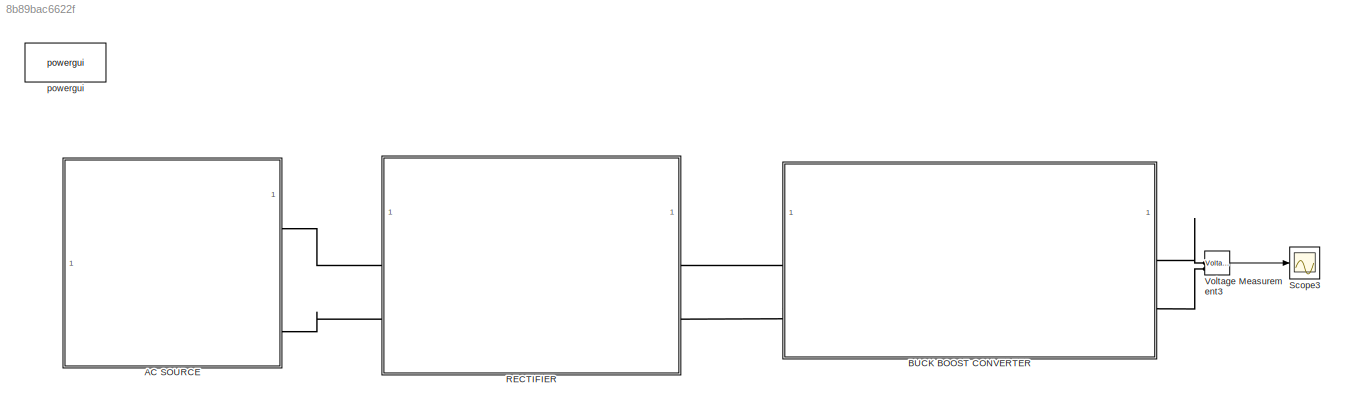
MODEL slx_8b89bac6622f
KIND model
CONFIG AbsTol = auto
CONFIG EnableMultiTasking = off
CONFIG FixedStep = auto
CONFIG MaxStep = auto
CONFIG MinStep = auto
CONFIG RelTol = 1e-3
CONFIG SampleTimeConstraint = Unconstrained
CONFIG SolverName = VariableStepAuto
CONFIG StartTime = 0.0
CONFIG StopTime = 0.02
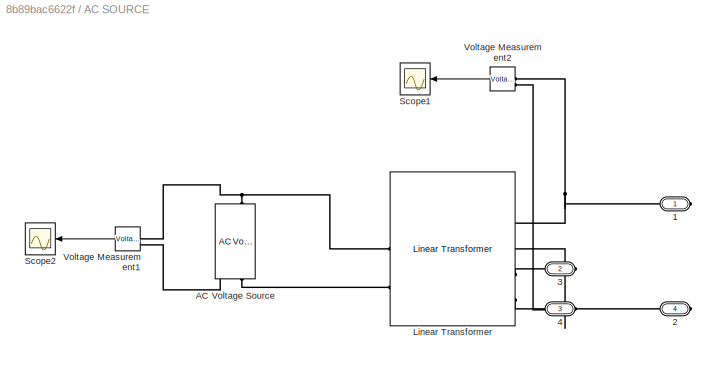
BLOCK [SubSystem] AC SOURCE
BLOCK [PMIOPort] AC SOURCE/1
  Side = Right
BLOCK [PMIOPort] AC SOURCE/2
  Port = 4
  Side = Right
BLOCK [PMIOPort] AC SOURCE/3
  Port = 2
  Side = Right
BLOCK [PMIOPort] AC SOURCE/4
  Port = 3
  Side = Right
BLOCK [Reference] AC SOURCE/AC Voltage Source  REF=spsACVoltageSourceLib/AC Voltage Source
  LibrarySourceBlock = sps_lib/Sources/AC Voltage Source
  SourceBlock = spsACVoltageSourceLib/AC Voltage Source
  SourceType = AC Voltage Source
BLOCK [Reference] AC SOURCE/Linear Transformer  REF=spsLinearTransformerLib/Linear Transformer
  LibrarySourceBlock = sps_lib/Power Grid Elements/Linear Transformer
  SourceBlock = spsLinearTransformerLib/Linear Transformer
  SourceType = Linear Transformer
BLOCK [Scope] AC SOURCE/Scope1
  Floating = off
  NumInputPorts = 1
  ScopeSpecificationString = Simulink.scopes.TimeScopeBlockCfg('CurrentConfiguration', extmgr.ConfigurationSet(extmgr.Configuration('Core','General UI',true),extmgr.Configuration('Core','Source UI',true),extmgr.Configuration('Sources','WiredSimulink',true),extmgr.Configuration('Visuals','Time Domain',true,'SerializedDisplays',{struct('MinYLimReal','-194.42426','MaxYLimReal','194.42425','YLabelReal','','MinYLimMag',' 0.00000',...<+1744ch>
BLOCK [Scope] AC SOURCE/Scope2
  Floating = off
  NumInputPorts = 1
  ScopeSpecificationString = Simulink.scopes.TimeScopeBlockCfg('CurrentConfiguration', extmgr.ConfigurationSet(extmgr.Configuration('Core','General UI',true),extmgr.Configuration('Core','Source UI',true),extmgr.Configuration('Sources','WiredSimulink',true,'DataLoggingVariableName','ScopeData2'),extmgr.Configuration('Visuals','Time Domain',true,'SerializedDisplays',{struct('MinYLimReal','-388.90872','MaxYLimReal','388.90871','...<+1556ch>
BLOCK [Reference] AC SOURCE/Voltage Measurement1  REF=spsVoltageMeasurementLib/Voltage Measurement
  LibrarySourceBlock = sps_lib/Sensors and Measurements/Voltage Measurement
  SourceBlock = spsVoltageMeasurementLib/Voltage Measurement
  SourceType = Voltage Measurement
  UserDataPersistent = on
BLOCK [Reference] AC SOURCE/Voltage Measurement2  REF=spsVoltageMeasurementLib/Voltage Measurement
  LibrarySourceBlock = sps_lib/Sensors and Measurements/Voltage Measurement
  SourceBlock = spsVoltageMeasurementLib/Voltage Measurement
  SourceType = Voltage Measurement
  UserDataPersistent = on
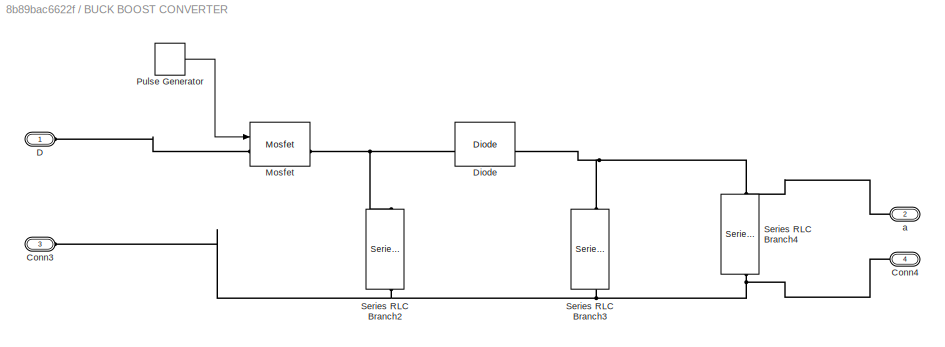
BLOCK [SubSystem] BUCK BOOST CONVERTER
BLOCK [PMIOPort] BUCK BOOST CONVERTER/Conn3
  Port = 3
  Side = Left
BLOCK [PMIOPort] BUCK BOOST CONVERTER/Conn4
  Port = 4
  Side = Right
BLOCK [PMIOPort] BUCK BOOST CONVERTER/D
  Side = Left
BLOCK [Reference] BUCK BOOST CONVERTER/Diode  REF=spsDiodeLib/Diode
  LibrarySourceBlock = sps_lib/Power Electronics/Diode
  SourceBlock = spsDiodeLib/Diode
  SourceType = Diode
BLOCK [Reference] BUCK BOOST CONVERTER/Mosfet  REF=spsMosfetLib/Mosfet
  LibrarySourceBlock = sps_lib/Power Electronics/Mosfet
  NameLocation = top
  SourceBlock = spsMosfetLib/Mosfet
  SourceType = Mosfet
BLOCK [DiscretePulseGenerator] BUCK BOOST CONVERTER/Pulse Generator
  Period = 1/40000
  PulseType = Time based
  PulseWidth = 0.536*100
BLOCK [Reference] BUCK BOOST CONVERTER/Series RLC Branch2  REF=spsSeriesRLCBranchLib/Series RLC Branch
  LibrarySourceBlock = sps_lib/Passives/Series RLC Branch
  NameLocation = left
  SourceBlock = spsSeriesRLCBranchLib/Series RLC Branch
  SourceType = Series RLC Branch
BLOCK [Reference] BUCK BOOST CONVERTER/Series RLC Branch3  REF=spsSeriesRLCBranchLib/Series RLC Branch
  LibrarySourceBlock = sps_lib/Passives/Series RLC Branch
  NameLocation = left
  SourceBlock = spsSeriesRLCBranchLib/Series RLC Branch
  SourceType = Series RLC Branch
BLOCK [Reference] BUCK BOOST CONVERTER/Series RLC Branch4  REF=spsSeriesRLCBranchLib/Series RLC Branch
  LibrarySourceBlock = sps_lib/Passives/Series RLC Branch
  NameLocation = left
  SourceBlock = spsSeriesRLCBranchLib/Series RLC Branch
  SourceType = Series RLC Branch
BLOCK [PMIOPort] BUCK BOOST CONVERTER/a
  Port = 2
  Side = Right
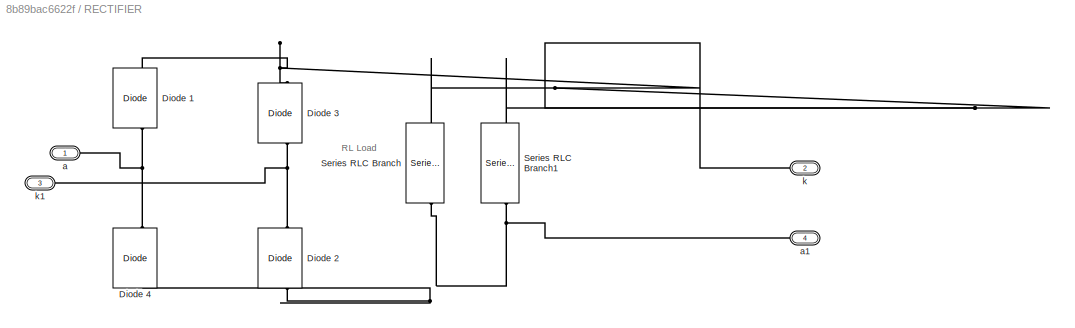
BLOCK [SubSystem] RECTIFIER
BLOCK [Reference] RECTIFIER/Diode 1  REF=spsDiodeLib/Diode
  LibrarySourceBlock = sps_lib/Power Electronics/Diode
  NameLocation = right
  SourceBlock = spsDiodeLib/Diode
  SourceType = Diode
BLOCK [Reference] RECTIFIER/Diode 2  REF=spsDiodeLib/Diode
  LibrarySourceBlock = sps_lib/Power Electronics/Diode
  NameLocation = right
  SourceBlock = spsDiodeLib/Diode
  SourceType = Diode
BLOCK [Reference] RECTIFIER/Diode 3  REF=spsDiodeLib/Diode
  LibrarySourceBlock = sps_lib/Power Electronics/Diode
  NameLocation = right
  SourceBlock = spsDiodeLib/Diode
  SourceType = Diode
BLOCK [Reference] RECTIFIER/Diode 4  REF=spsDiodeLib/Diode
  LibrarySourceBlock = sps_lib/Power Electronics/Diode
  NameLocation = right
  SourceBlock = spsDiodeLib/Diode
  SourceType = Diode
BLOCK [Reference] RECTIFIER/Series RLC Branch  REF=spsSeriesRLCBranchLib/Series RLC Branch
  LibrarySourceBlock = sps_lib/Passives/Series RLC Branch
  NameLocation = left
  SourceBlock = spsSeriesRLCBranchLib/Series RLC Branch
  SourceType = Series RLC Branch
BLOCK [Reference] RECTIFIER/Series RLC Branch1  REF=spsSeriesRLCBranchLib/Series RLC Branch
  LibrarySourceBlock = sps_lib/Passives/Series RLC Branch
  NameLocation = left
  SourceBlock = spsSeriesRLCBranchLib/Series RLC Branch
  SourceType = Series RLC Branch
BLOCK [PMIOPort] RECTIFIER/a
  Side = Left
BLOCK [PMIOPort] RECTIFIER/a1
  Port = 4
  Side = Right
BLOCK [PMIOPort] RECTIFIER/k
  Port = 2
  Side = Right
BLOCK [PMIOPort] RECTIFIER/k1
  Port = 3
  Side = Left
BLOCK [Scope] Scope3
  Floating = off
  NumInputPorts = 1
  ScopeSpecificationString = Simulink.scopes.TimeScopeBlockCfg('CurrentConfiguration', extmgr.ConfigurationSet(extmgr.Configuration('Core','General UI',true),extmgr.Configuration('Core','Source UI',true),extmgr.Configuration('Sources','WiredSimulink',true,'DataLoggingVariableName','ScopeData1'),extmgr.Configuration('Visuals','Time Domain',true,'SerializedDisplays',{struct('MinYLimReal','-203.50254','MaxYLimReal','22.61169','Y...<+2090ch>
BLOCK [Reference] Voltage Measurement3  REF=spsVoltageMeasurementLib/Voltage Measurement
  LibrarySourceBlock = sps_lib/Sensors and Measurements/Voltage Measurement
  SourceBlock = spsVoltageMeasurementLib/Voltage Measurement
  SourceType = Voltage Measurement
  UserDataPersistent = on
BLOCK [Reference] powergui  REF=sps_lib/powergui
  LibrarySourceBlock = sps_lib/powergui
  Priority = 1
  SourceBlock = sps_lib/powergui
  SourceType = PSB option menu block
ANNOTATION RECTIFIER: RL Load
LINE AC SOURCE/Voltage Measurement1:1 -> AC SOURCE/Scope2:1
LINE AC SOURCE/Voltage Measurement2:1 -> AC SOURCE/Scope1:1
LINE BUCK BOOST CONVERTER/Pulse Generator:1 -> BUCK BOOST CONVERTER/Mosfet:1
LINE Voltage Measurement3:1 -> Scope3:1
PNET net1: AC SOURCE/1:RConn1 -- AC SOURCE/Linear Transformer:RConn1 -- AC SOURCE/Voltage Measurement2:LConn1
PNET net2: AC SOURCE/2:RConn1 -- AC SOURCE/Linear Transformer:RConn2 -- AC SOURCE/Voltage Measurement2:LConn2
PLINE AC SOURCE/3:RConn1 -- AC SOURCE/Linear Transformer:RConn3
PLINE AC SOURCE/4:RConn1 -- AC SOURCE/Linear Transformer:RConn4
PNET net3: AC SOURCE/AC Voltage Source:LConn1 -- AC SOURCE/Linear Transformer:LConn2 -- AC SOURCE/Voltage Measurement1:LConn2
PNET net4: AC SOURCE/AC Voltage Source:RConn1 -- AC SOURCE/Linear Transformer:LConn1 -- AC SOURCE/Voltage Measurement1:LConn1
PLINE AC SOURCE:RConn1 -- RECTIFIER:LConn1
PLINE AC SOURCE:RConn4 -- RECTIFIER:LConn2
PNET net5: BUCK BOOST CONVERTER/Conn3:RConn1 -- BUCK BOOST CONVERTER/Conn4:RConn1 -- BUCK BOOST CONVERTER/Series RLC Branch2:RConn1 -- BUCK BOOST CONVERTER/Series RLC Branch3:RConn1 -- BUCK BOOST CONVERTER/Series RLC Branch4:RConn1
PLINE BUCK BOOST CONVERTER/D:RConn1 -- BUCK BOOST CONVERTER/Mosfet:LConn1
PNET net6: BUCK BOOST CONVERTER/Diode:LConn1 -- BUCK BOOST CONVERTER/Series RLC Branch3:LConn1 -- BUCK BOOST CONVERTER/Series RLC Branch4:LConn1 -- BUCK BOOST CONVERTER/a:RConn1
PNET net7: BUCK BOOST CONVERTER/Diode:RConn1 -- BUCK BOOST CONVERTER/Mosfet:RConn1 -- BUCK BOOST CONVERTER/Series RLC Branch2:LConn1
PLINE BUCK BOOST CONVERTER:LConn1 -- RECTIFIER:RConn1
PLINE BUCK BOOST CONVERTER:LConn2 -- RECTIFIER:RConn2
PLINE BUCK BOOST CONVERTER:RConn1 -- Voltage Measurement3:LConn1
PLINE BUCK BOOST CONVERTER:RConn2 -- Voltage Measurement3:LConn2
PNET net8: RECTIFIER/Diode 1:LConn1 -- RECTIFIER/Diode 4:RConn1 -- RECTIFIER/a:RConn1
PNET net9: RECTIFIER/Diode 1:RConn1 -- RECTIFIER/Diode 3:RConn1 -- RECTIFIER/Series RLC Branch1:LConn1 -- RECTIFIER/Series RLC Branch:LConn1 -- RECTIFIER/k:RConn1
PNET net10: RECTIFIER/Diode 2:LConn1 -- RECTIFIER/Diode 4:LConn1 -- RECTIFIER/Series RLC Branch1:RConn1 -- RECTIFIER/Series RLC Branch:RConn1 -- RECTIFIER/a1:RConn1
PNET net11: RECTIFIER/Diode 2:RConn1 -- RECTIFIER/Diode 3:LConn1 -- RECTIFIER/k1:RConn1
note: PNET lines group multi-terminal physical nets as a canonical sorted terminal list (undirected conserving connections); 2-terminal nets keep the pairwise PLINE form
